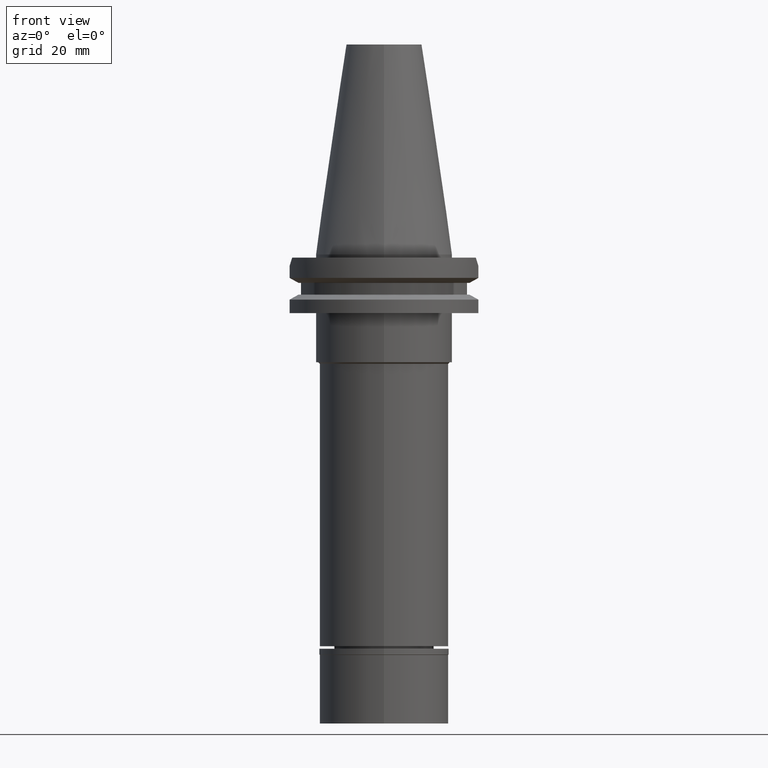
[diagram: clean part render]
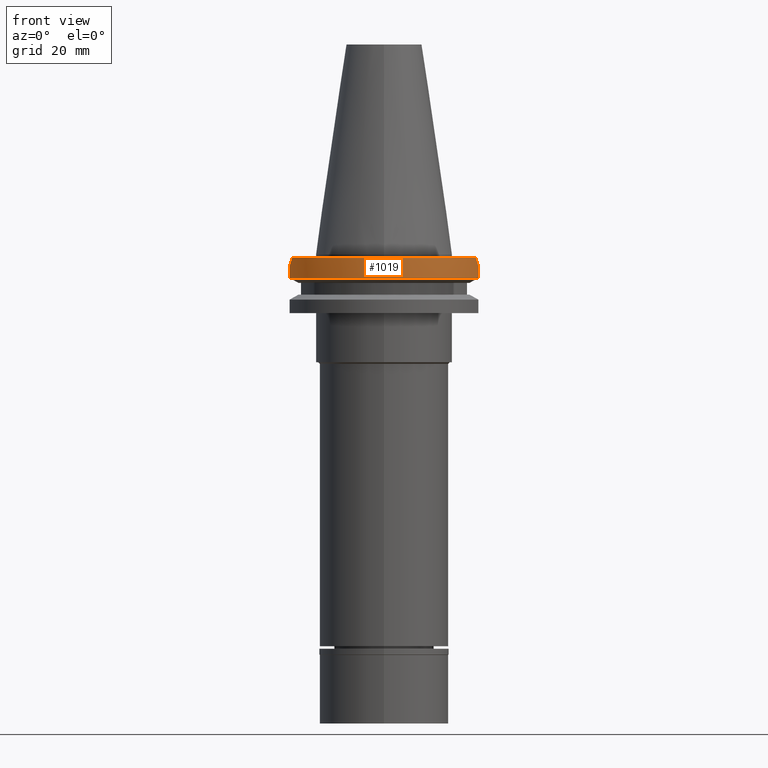
[diagram: same view with one face highlighted and labeled with its STEP entity id]
A machine part, front view. The second image highlights one B-rep face of the part: STEP entity #1019.
In plain terms, the highlighted cylindrical surface (partial cylindrical patch) has radius 31.75 mm, axis along (0, 0, -1).
Its self-contained STEP definition (entity closure, byte-faithful):
#31 = VERTEX_POINT ( 'NONE', #1995 ) ;
#35 = DIRECTION ( 'NONE',  ( 0.0000000000000000000, 0.0000000000000000000, -1.000000000000000000 ) ) ;
#52 = CARTESIAN_POINT ( 'NONE',  ( -30.43183015827552040, -9.102667216255303728, -2.787332783744696840 ) ) ;
#210 = DIRECTION ( 'NONE',  ( 0.0000000000000000000, 0.0000000000000000000, -1.000000000000000000 ) ) ;
#287 = CARTESIAN_POINT ( 'NONE',  ( 30.67550146398999900, -8.190000606407000561, -7.601327811714999605 ) ) ;
#403 = VERTEX_POINT ( 'NONE', #2904 ) ;
#465 = FACE_OUTER_BOUND ( 'NONE', #2210, .T. ) ;
#467 = EDGE_CURVE ( 'NONE', #2522, #31, #950, .T. ) ;
#473 = VERTEX_POINT ( 'NONE', #287 ) ;
#566 = ORIENTED_EDGE ( 'NONE', *, *, #467, .F. ) ;
#649 = DIRECTION ( 'NONE',  ( -4.149952334242944498E-08, -1.554361652635980091E-07, -0.9999999999999870104 ) ) ;
#651 = CIRCLE ( 'NONE', #2026, 31.75000000000000000 ) ;
#751 = CARTESIAN_POINT ( 'NONE',  ( 0.0000000000000000000, 2.190984972184999566E-14, 78.90749999999999886 ) ) ;
#774 = EDGE_CURVE ( 'NONE', #31, #473, #2901, .T. ) ;
#792 = CARTESIAN_POINT ( 'NONE',  ( 30.43183015827552396, -9.102667216255303728, -2.787332783744696840 ) ) ;
#807 = VECTOR ( 'NONE', #649, 1000.000000000000227 ) ;
#950 = B_SPLINE_CURVE_WITH_KNOTS ( 'NONE', 3,
 ( #2731, #983, #792, #1018 ),
 .UNSPECIFIED., .F., .F.,
 ( 4, 4 ),
 ( 0.0000000000000000000, 1.000000000000000000 ),
 .UNSPECIFIED. ) ;
#983 = CARTESIAN_POINT ( 'NONE',  ( 30.14799306409552671, -10.00266721625513888, -1.887332783744861908 ) ) ;
#1018 = CARTESIAN_POINT ( 'NONE',  ( 30.67550162588999640, -8.189999999999999503, -3.700000000000000178 ) ) ;
#1019 = ADVANCED_FACE ( 'NONE', ( #465 ), #2003, .T. ) ;
#1030 = ORIENTED_EDGE ( 'NONE', *, *, #1354, .T. ) ;
#1051 = DIRECTION ( 'NONE',  ( 0.0000000000000000000, -1.000000000000000000, 0.0000000000000000000 ) ) ;
#1107 = EDGE_CURVE ( 'NONE', #403, #1372, #1184, .T. ) ;
#1184 = B_SPLINE_CURVE_WITH_KNOTS ( 'NONE', 3,
 ( #1342, #52, #2092, #1808 ),
 .UNSPECIFIED., .F., .F.,
 ( 4, 4 ),
 ( 0.0000000000000000000, 1.000000000000000000 ),
 .UNSPECIFIED. ) ;
#1276 = DIRECTION ( 'NONE',  ( -0.9661575315241073270, -0.2579527559055020958, 0.0000000000000000000 ) ) ;
#1295 = CARTESIAN_POINT ( 'NONE',  ( 0.0000000000000000000, 1.121722380078999823E-14, -7.601333230925999551 ) ) ;
#1342 = CARTESIAN_POINT ( 'NONE',  ( -30.67550162588999640, -8.189999999999999503, -3.700000000000000178 ) ) ;
#1354 = EDGE_CURVE ( 'NONE', #3003, #473, #2455, .T. ) ;
#1372 = VERTEX_POINT ( 'NONE', #2427 ) ;
#1432 = CARTESIAN_POINT ( 'NONE',  ( 30.67550162588999640, -8.189999999999999503, -3.700000000000000178 ) ) ;
#1584 = ORIENTED_EDGE ( 'NONE', *, *, #1107, .F. ) ;
#1650 = EDGE_CURVE ( 'NONE', #3003, #403, #2146, .T. ) ;
#1655 = VECTOR ( 'NONE', #2413, 1000.000000000000114 ) ;
#1692 = CARTESIAN_POINT ( 'NONE',  ( -30.67550165945999652, -8.189999874276001179, -7.601334354445000052 ) ) ;
#1808 = CARTESIAN_POINT ( 'NONE',  ( -29.82399034335000110, -10.89000000000000057, -1.000000000001000089 ) ) ;
#1986 = ORIENTED_EDGE ( 'NONE', *, *, #1650, .F. ) ;
#1995 = CARTESIAN_POINT ( 'NONE',  ( 30.67550162588999640, -8.189999999999999503, -3.700000000000000178 ) ) ;
#2003 = CYLINDRICAL_SURFACE ( 'NONE', #2689, 31.75000000000000000 ) ;
#2026 = AXIS2_PLACEMENT_3D ( 'NONE', #2305, #35, #1051 ) ;
#2092 = CARTESIAN_POINT ( 'NONE',  ( -30.14799306409551960, -10.00266721625513888, -1.887332783744861908 ) ) ;
#2146 = LINE ( 'NONE', #1692, #1655 ) ;
#2169 = ORIENTED_EDGE ( 'NONE', *, *, #2303, .T. ) ;
#2210 = EDGE_LOOP ( 'NONE', ( #566, #2169, #1584, #1986, #1030, #2989 ) ) ;
#2303 = EDGE_CURVE ( 'NONE', #2522, #1372, #651, .T. ) ;
#2305 = CARTESIAN_POINT ( 'NONE',  ( 0.0000000000000000000, 2.190984972184999566E-14, -1.000000000000000000 ) ) ;
#2413 = DIRECTION ( 'NONE',  ( 8.604053470648995806E-09, -3.222588451521998241E-08, 0.9999999999999994449 ) ) ;
#2427 = CARTESIAN_POINT ( 'NONE',  ( -29.82399034335000110, -10.89000000000000057, -1.000000000001000089 ) ) ;
#2455 = CIRCLE ( 'NONE', #3255, 31.74999999999998579 ) ;
#2522 = VERTEX_POINT ( 'NONE', #3143 ) ;
#2537 = DIRECTION ( 'NONE',  ( 0.0000000000000000000, 0.0000000000000000000, 1.000000000000000000 ) ) ;
#2689 = AXIS2_PLACEMENT_3D ( 'NONE', #751, #210, #3048 ) ;
#2731 = CARTESIAN_POINT ( 'NONE',  ( 29.82399034335000110, -10.89000000000000057, -1.000000000001000089 ) ) ;
#2901 = LINE ( 'NONE', #1432, #807 ) ;
#2904 = CARTESIAN_POINT ( 'NONE',  ( -30.67550162588999640, -8.189999999999999503, -3.700000000000000178 ) ) ;
#2989 = ORIENTED_EDGE ( 'NONE', *, *, #774, .F. ) ;
#3003 = VERTEX_POINT ( 'NONE', #3154 ) ;
#3048 = DIRECTION ( 'NONE',  ( 0.0000000000000000000, -1.000000000000000000, 0.0000000000000000000 ) ) ;
#3143 = CARTESIAN_POINT ( 'NONE',  ( 29.82399034335000110, -10.89000000000000057, -1.000000000001000089 ) ) ;
#3154 = CARTESIAN_POINT ( 'NONE',  ( -30.67550165945999652, -8.189999874276001179, -7.601334354445000052 ) ) ;
#3255 = AXIS2_PLACEMENT_3D ( 'NONE', #1295, #2537, #1276 ) ;